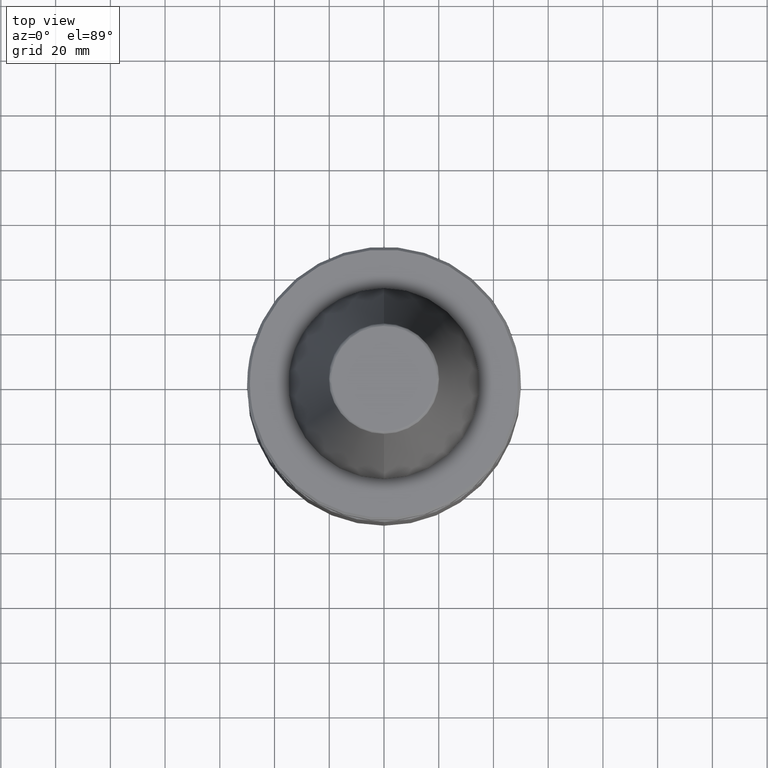
[diagram: clean part render]
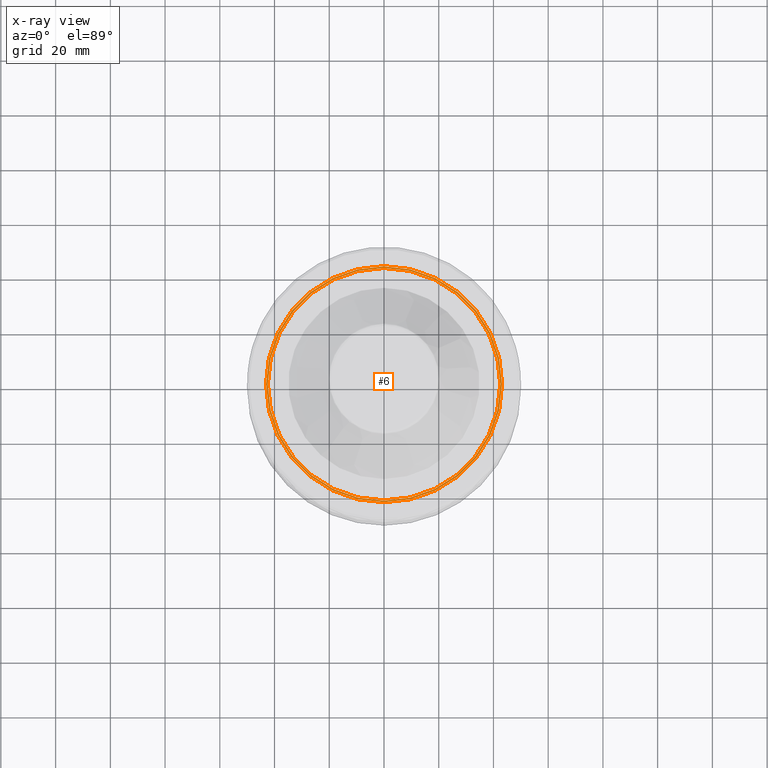
[diagram: x-ray — body ghosted, one internal face saturated and labeled with its STEP entity id]
A machine part, top view, then the same camera in x-ray: the body is ghosted and one INTERNAL B-rep face — a face not visible from any outside direction — is saturated and labeled: STEP entity #6.
In plain terms, the highlighted planar face has unit normal (0, 0, 1).
Its self-contained STEP definition (entity closure, byte-faithful):
#5 = CARTESIAN_POINT ( 'NONE',  ( 0.0000000000000000000, 0.0000000000000000000, -19.70000000168331400 ) ) ;
#6 = ADVANCED_FACE ( 'NONE', ( #943, #1337 ), #1281, .F. ) ;
#14 = VERTEX_POINT ( 'NONE', #1226 ) ;
#34 = AXIS2_PLACEMENT_3D ( 'NONE', #145, #144, #142 ) ;
#44 = AXIS2_PLACEMENT_3D ( 'NONE', #566, #565, #563 ) ;
#72 = EDGE_CURVE ( 'NONE', #782, #14, #1092, .T. ) ;
#101 = CIRCLE ( 'NONE', #277, 43.11099932639406500 ) ;
#124 = AXIS2_PLACEMENT_3D ( 'NONE', #1143, #1201, #1334 ) ;
#142 = DIRECTION ( 'NONE',  ( 1.000000000000000000, 0.0000000000000000000, 0.0000000000000000000 ) ) ;
#144 = DIRECTION ( 'NONE',  ( -0.0000000000000000000, -0.0000000000000000000, 1.000000000000000000 ) ) ;
#145 = CARTESIAN_POINT ( 'NONE',  ( 0.0000000000000000000, 0.0000000000000000000, -19.70000000168331400 ) ) ;
#194 = EDGE_CURVE ( 'NONE', #914, #659, #101, .T. ) ;
#199 = ORIENTED_EDGE ( 'NONE', *, *, #72, .F. ) ;
#253 = ORIENTED_EDGE ( 'NONE', *, *, #1236, .F. ) ;
#277 = AXIS2_PLACEMENT_3D ( 'NONE', #5, #1000, #985 ) ;
#449 = CARTESIAN_POINT ( 'NONE',  ( -43.11099932639406500, 5.701404364523993400E-015, -19.70000000168331400 ) ) ;
#563 = DIRECTION ( 'NONE',  ( 1.000000000000000000, 0.0000000000000000000, 0.0000000000000000000 ) ) ;
#565 = DIRECTION ( 'NONE',  ( -0.0000000000000000000, -0.0000000000000000000, -1.000000000000000000 ) ) ;
#566 = CARTESIAN_POINT ( 'NONE',  ( 0.0000000000000000000, 0.0000000000000000000, -19.70000000000001000 ) ) ;
#576 = CARTESIAN_POINT ( 'NONE',  ( -42.50000000000000000, 5.204748896376250900E-015, -19.70000000000001000 ) ) ;
#650 = CIRCLE ( 'NONE', #44, 42.50000000000000000 ) ;
#659 = VERTEX_POINT ( 'NONE', #674 ) ;
#674 = CARTESIAN_POINT ( 'NONE',  ( 43.11099932639406500, 0.0000000000000000000, -19.70000000168331400 ) ) ;
#744 = ORIENTED_EDGE ( 'NONE', *, *, #777, .F. ) ;
#749 = AXIS2_PLACEMENT_3D ( 'NONE', #1152, #963, #1315 ) ;
#777 = EDGE_CURVE ( 'NONE', #14, #782, #650, .T. ) ;
#782 = VERTEX_POINT ( 'NONE', #576 ) ;
#802 = EDGE_LOOP ( 'NONE', ( #253, #1053 ) ) ;
#914 = VERTEX_POINT ( 'NONE', #449 ) ;
#943 = FACE_BOUND ( 'NONE', #1178, .T. ) ;
#963 = DIRECTION ( 'NONE',  ( 0.0000000000000000000, 0.0000000000000000000, 1.000000000000000000 ) ) ;
#985 = DIRECTION ( 'NONE',  ( 1.000000000000000000, 0.0000000000000000000, 0.0000000000000000000 ) ) ;
#1000 = DIRECTION ( 'NONE',  ( -0.0000000000000000000, -0.0000000000000000000, 1.000000000000000000 ) ) ;
#1053 = ORIENTED_EDGE ( 'NONE', *, *, #194, .F. ) ;
#1092 = CIRCLE ( 'NONE', #124, 42.50000000000000000 ) ;
#1131 = CIRCLE ( 'NONE', #34, 43.11099932639406500 ) ;
#1143 = CARTESIAN_POINT ( 'NONE',  ( 0.0000000000000000000, 0.0000000000000000000, -19.70000000000001000 ) ) ;
#1152 = CARTESIAN_POINT ( 'NONE',  ( -41.60403268600000400, 12.85000000000000100, -19.69999999999999900 ) ) ;
#1178 = EDGE_LOOP ( 'NONE', ( #744, #199 ) ) ;
#1201 = DIRECTION ( 'NONE',  ( -0.0000000000000000000, -0.0000000000000000000, -1.000000000000000000 ) ) ;
#1226 = CARTESIAN_POINT ( 'NONE',  ( 42.50000000000000000, 0.0000000000000000000, -19.70000000000001000 ) ) ;
#1236 = EDGE_CURVE ( 'NONE', #659, #914, #1131, .T. ) ;
#1281 = PLANE ( 'NONE',  #749 ) ;
#1315 = DIRECTION ( 'NONE',  ( 1.000000000000000000, 0.0000000000000000000, -0.0000000000000000000 ) ) ;
#1334 = DIRECTION ( 'NONE',  ( 1.000000000000000000, 0.0000000000000000000, 0.0000000000000000000 ) ) ;
#1337 = FACE_OUTER_BOUND ( 'NONE', #802, .T. ) ;